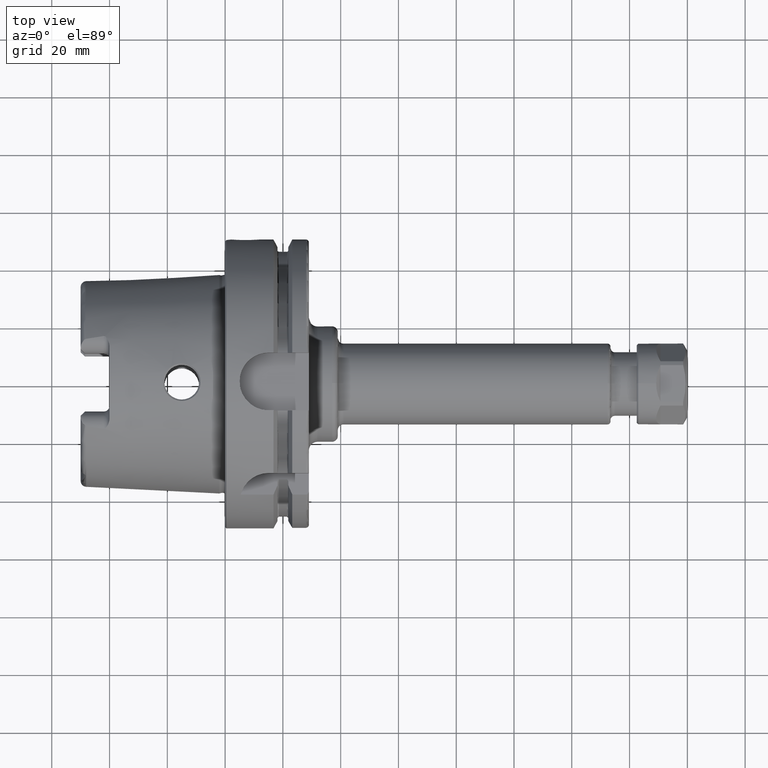
[diagram: clean part render]
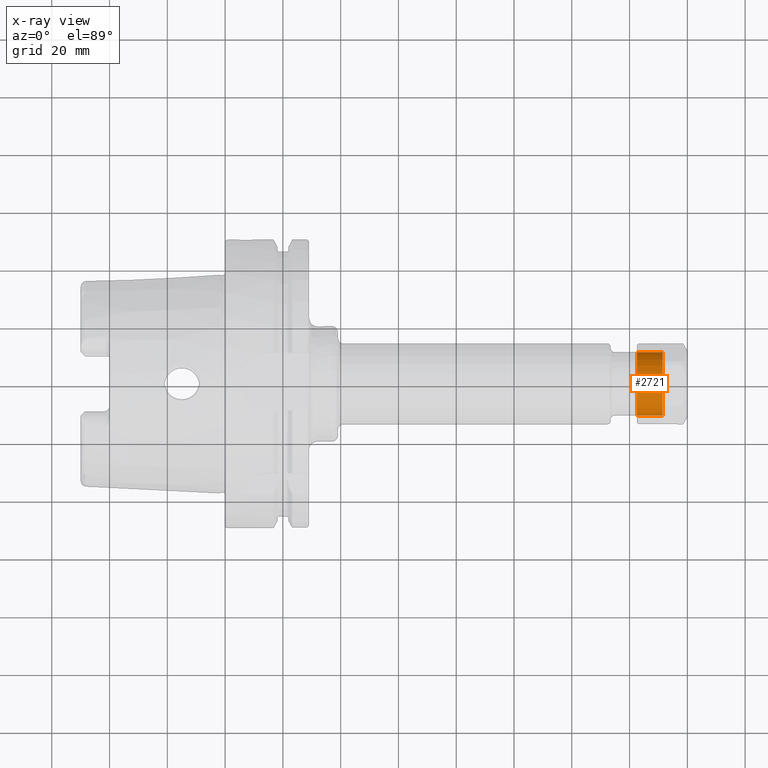
[diagram: x-ray — body ghosted, one internal face saturated and labeled with its STEP entity id]
A machine part, top view, then the same camera in x-ray: the body is ghosted and one INTERNAL B-rep face — a face not visible from any outside direction — is saturated and labeled: STEP entity #2721.
In plain terms, the highlighted cylindrical surface (bore or boss wall) has radius 11 mm, axis along (-1, 0, 0).
Its self-contained STEP definition (entity closure, byte-faithful):
#436=FACE_OUTER_BOUND('',#608,.T.);
#608=EDGE_LOOP('',(#2520,#2521,#2522,#2523));
#750=LINE('',#5669,#892);
#892=VECTOR('',#3953,11.);
#1060=CIRCLE('',#3132,11.);
#1061=CIRCLE('',#3133,11.);
#1321=VERTEX_POINT('',#5666);
#1322=VERTEX_POINT('',#5668);
#1721=EDGE_CURVE('',#1321,#1321,#1060,.T.);
#1722=EDGE_CURVE('',#1321,#1322,#750,.T.);
#1723=EDGE_CURVE('',#1322,#1322,#1061,.T.);
#2520=ORIENTED_EDGE('',*,*,#1721,.F.);
#2521=ORIENTED_EDGE('',*,*,#1722,.T.);
#2522=ORIENTED_EDGE('',*,*,#1723,.F.);
#2523=ORIENTED_EDGE('',*,*,#1722,.F.);
#2567=CYLINDRICAL_SURFACE('',#3131,11.);
#2721=ADVANCED_FACE('',(#436),#2567,.T.);
#3131=AXIS2_PLACEMENT_3D('',#5665,#3949,#3950);
#3132=AXIS2_PLACEMENT_3D('',#5667,#3951,#3952);
#3133=AXIS2_PLACEMENT_3D('',#5670,#3954,#3955);
#3949=DIRECTION('center_axis',(-1.,0.,0.));
#3950=DIRECTION('ref_axis',(0.,-1.,0.));
#3951=DIRECTION('center_axis',(-1.,0.,0.));
#3952=DIRECTION('ref_axis',(0.,-1.,0.));
#3953=DIRECTION('',(1.,0.,0.));
#3954=DIRECTION('center_axis',(1.,0.,0.));
#3955=DIRECTION('ref_axis',(0.,1.,0.));
#5665=CARTESIAN_POINT('Origin',(-8.75,0.,0.));
#5666=CARTESIAN_POINT('',(-8.75,11.,0.));
#5667=CARTESIAN_POINT('Origin',(-8.75,0.,0.));
#5668=CARTESIAN_POINT('',(0.25,11.,0.));
#5669=CARTESIAN_POINT('',(-8.75,11.,-1.34711147906209E-15));
#5670=CARTESIAN_POINT('Origin',(0.25,0.,0.));